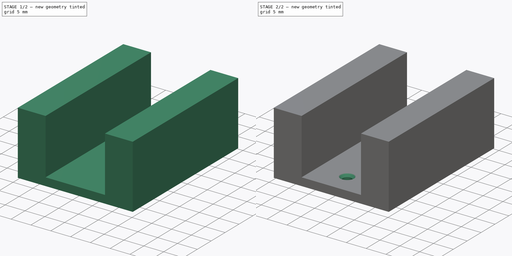
[diagram: build sequence overview — one tinted view per stage of 2, left to right]
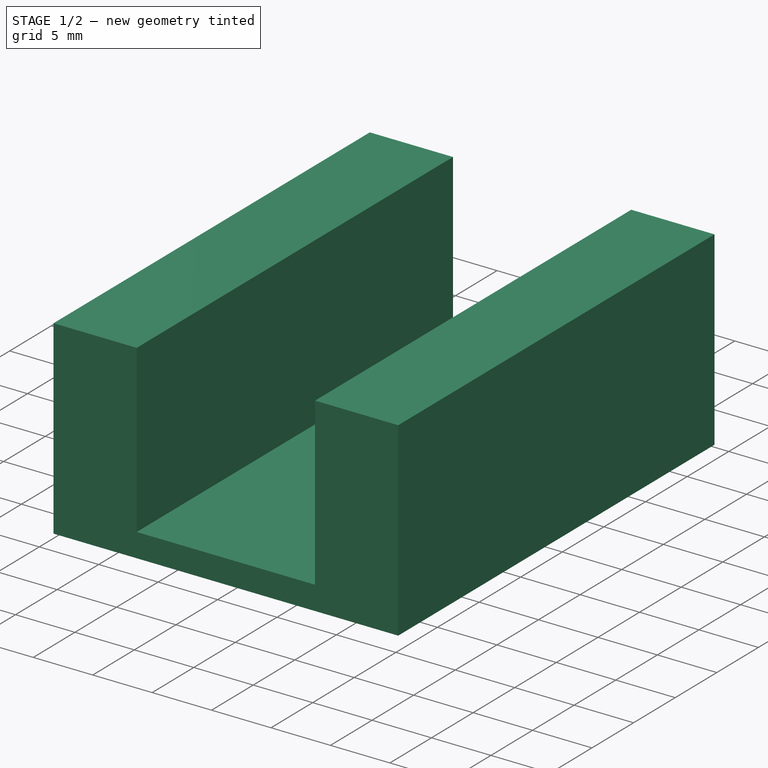
[diagram: stage 1 of 2 — iso view after this stage's code; geometry added in this stage tinted green]
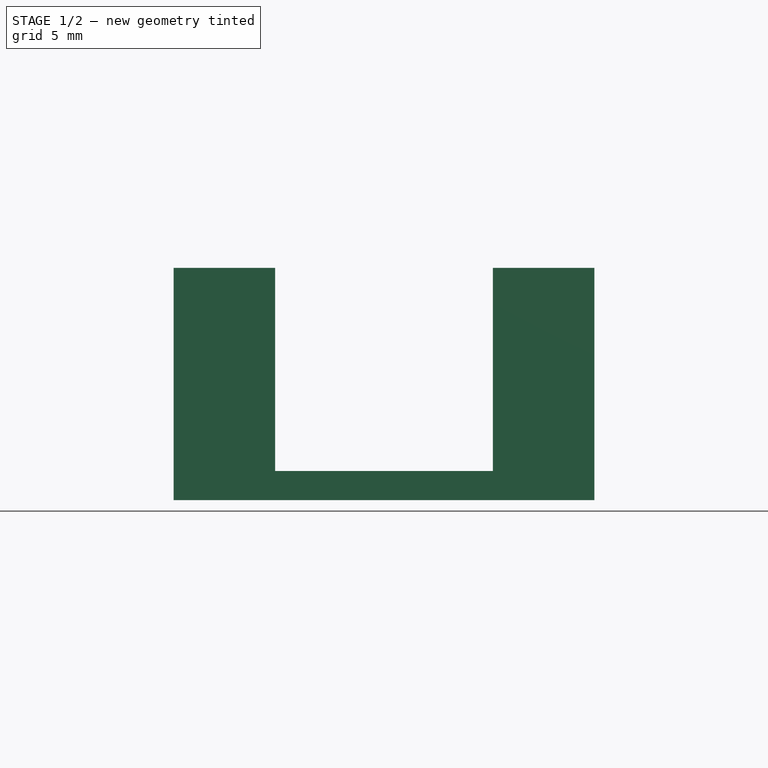
[diagram: stage 1 of 2 — front view after this stage's code; geometry added in this stage tinted green]
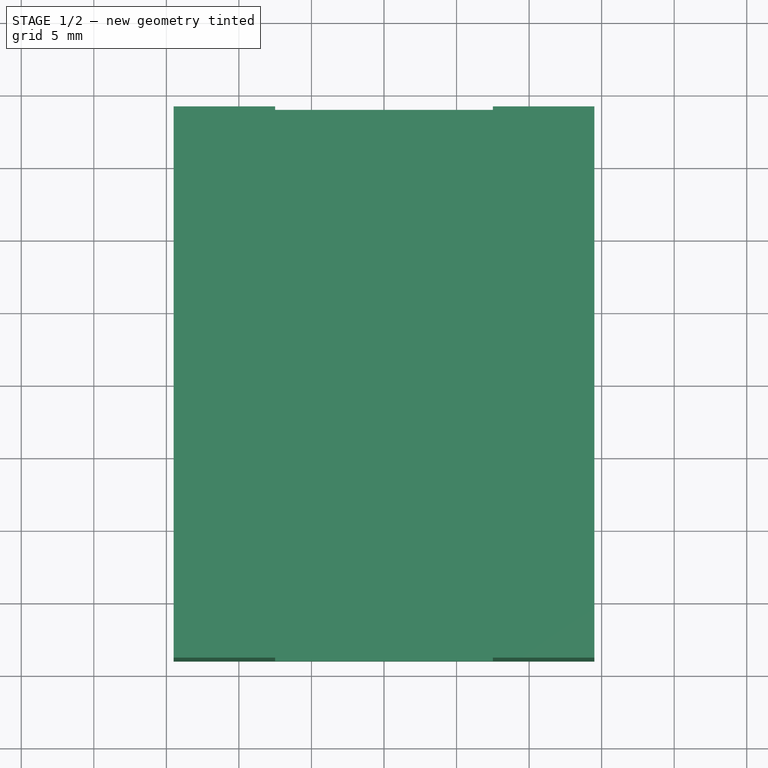
[diagram: stage 1 of 2 — top view after this stage's code; geometry added in this stage tinted green]
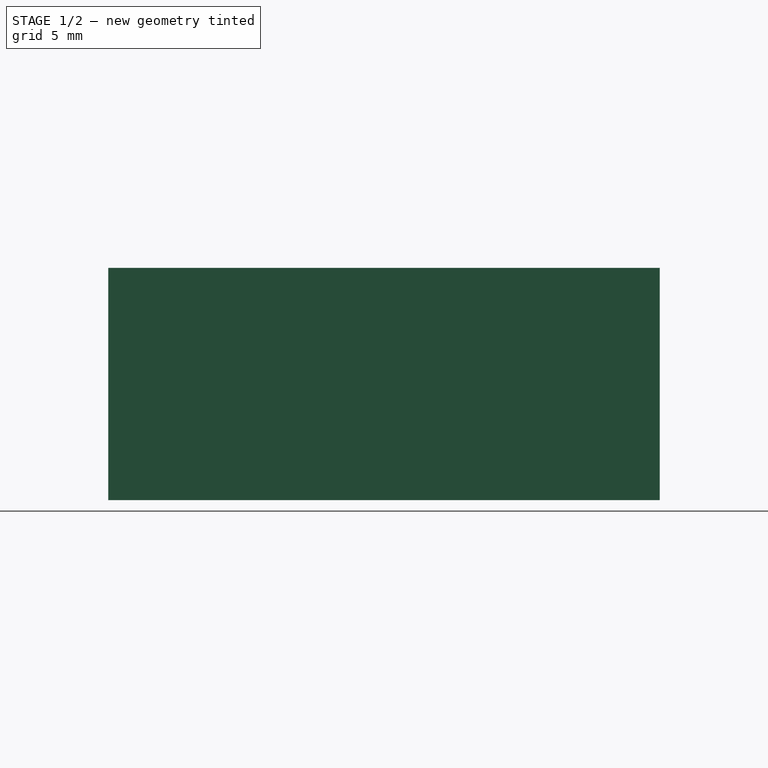
[diagram: stage 1 of 2 — right view after this stage's code; geometry added in this stage tinted green]
FCSTD DOCUMENT  (FreeCAD 0.21R33668 +26 (Git))
Label: TapWaterThermostatGrip
License: All rights reserved
LicenseURL: https://en.wikipedia.org/wiki/All_rights_reserved
objects: Sketcher::SketchObject×3, PartDesign::Pad×2, PartDesign::Hole×1, PartDesign::Body×1
note: 10 computed .brp shape members not serialized (recipe doc carries the construction recipe); baked Part::Feature solids carry a one-line shape summary decoded from their .brp

FEATURE [Sketcher::SketchObject] Sketch
  FullyConstrained = true
  MapMode = 5
  Support = -> [XY_Plane]
  expr: Constraints[22] = .Constraints.height / 2
  sketch-geometry (8):
    g0: LineSegment StartX=7.5 StartY=19 StartZ=0 EndX=14.5 EndY=19 EndZ=0
    g1: LineSegment StartX=14.5 StartY=19 StartZ=0 EndX=14.5 EndY=-19 EndZ=0
    g2: LineSegment StartX=14.5 StartY=-19 StartZ=0 EndX=7.5 EndY=-19 EndZ=0
    g3: LineSegment StartX=7.5 StartY=-19 StartZ=0 EndX=7.5 EndY=19 EndZ=0
    g4: LineSegment StartX=-14.5 StartY=19 StartZ=0 EndX=-7.5 EndY=19 EndZ=0
    g5: LineSegment StartX=-7.5 StartY=19 StartZ=0 EndX=-7.5 EndY=-19 EndZ=0
    g6: LineSegment StartX=-7.5 StartY=-19 StartZ=0 EndX=-14.5 EndY=-19 EndZ=0
    g7: LineSegment StartX=-14.5 StartY=-19 StartZ=0 EndX=-14.5 EndY=19 EndZ=0
  constraints (23):
    c: Coincident(g0,g1)
    c: Coincident(g1,g2)
    c: Coincident(g2,g3)
    c: Coincident(g3,g0)
    c: Horizontal(g0)
    c: Horizontal(g2)
    c: Vertical(g1)
    c: Vertical(g3)
    c: DistanceY(g1,g1) = 38  'height'
    c: Coincident(g4,g5)
    c: Coincident(g5,g6)
    c: Coincident(g6,g7)
    c: Coincident(g7,g4)
    c: Horizontal(g4)
    c: Horizontal(g6)
    c: Vertical(g5)
    c: Vertical(g7)
    c: Equal(g7,g1)
    c: Symmetric(g5,g2,g-2)
    c: DistanceX(g2,g2) = 7  'thickness'
    c: Equal(g6,g2)
    c: DistanceX(g4,g0) = 15  'inner_width'
    c: DistanceY(g-1,g4) = 19
FEATURE [Sketcher::SketchObject] Sketch001
  FullyConstrained = true
  MapMode = 5
  Support = -> [XY_Plane]
  expr: .Constraints.width = Sketch.Constraints.inner_width + 2 * Sketch.Constraints.thickness
  expr: Constraints[10] = Sketch.Constraints.height / 2
  expr: Constraints[11] = .Constraints.width / 2
  expr: Constraints[8] = Sketch.Constraints.height
  sketch-geometry (4):
    g0: LineSegment StartX=-14.5 StartY=19 StartZ=0 EndX=14.5 EndY=19 EndZ=0
    g1: LineSegment StartX=14.5 StartY=19 StartZ=0 EndX=14.5 EndY=-19 EndZ=0
    g2: LineSegment StartX=14.5 StartY=-19 StartZ=0 EndX=-14.5 EndY=-19 EndZ=0
    g3: LineSegment StartX=-14.5 StartY=-19 StartZ=0 EndX=-14.5 EndY=19 EndZ=0
  constraints (12):
    c: Coincident(g0,g1)
    c: Coincident(g1,g2)
    c: Coincident(g2,g3)
    c: Coincident(g3,g0)
    c: Horizontal(g0)
    c: Horizontal(g2)
    c: Vertical(g1)
    c: Vertical(g3)
    c: DistanceY(g1,g1) = 38
    c: DistanceX(g0,g0) = 29  'width'
    c: DistanceY(g-1,g0) = 19
    c: DistanceX(g0,g-1) = 14.5
FEATURE [PartDesign::Pad] Pad
  Direction = (0,0,1)
  Length = 2
  Length2 = 10
  Profile = -> Sketch001
  ReferenceAxis = -> Sketch001 [N_Axis]
  Reversed = true
  Type = 0
FEATURE [PartDesign::Pad] Pad001
  BaseFeature = -> Pad
  Direction = (0,0,1)
  Length = 14
  Length2 = 10
  Profile = -> Sketch
  ReferenceAxis = -> Sketch [N_Axis]
  Type = 0
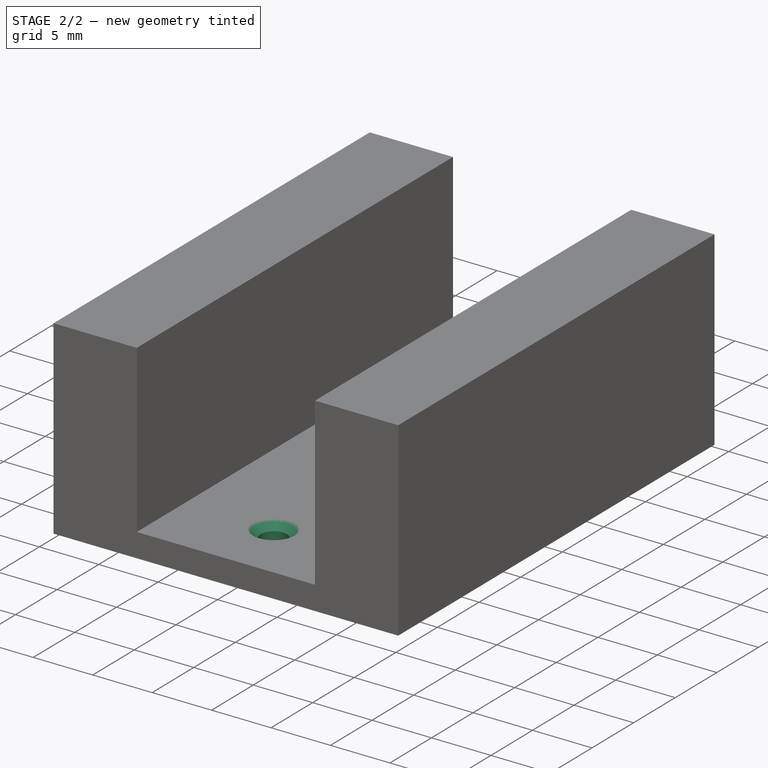
[diagram: stage 2 of 2 — iso view after this stage's code; geometry added in this stage tinted green]
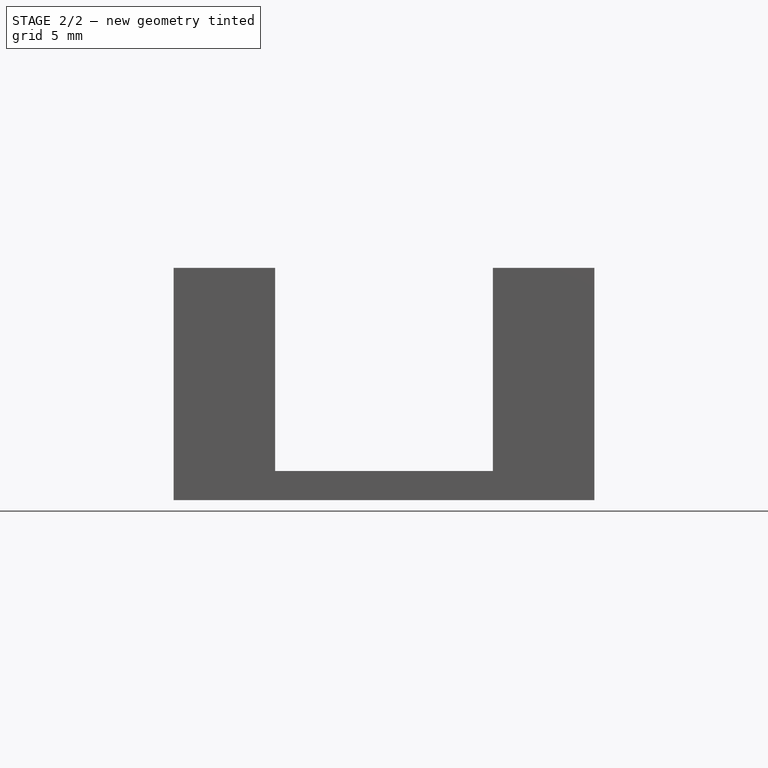
[diagram: stage 2 of 2 — front view after this stage's code; geometry added in this stage tinted green]
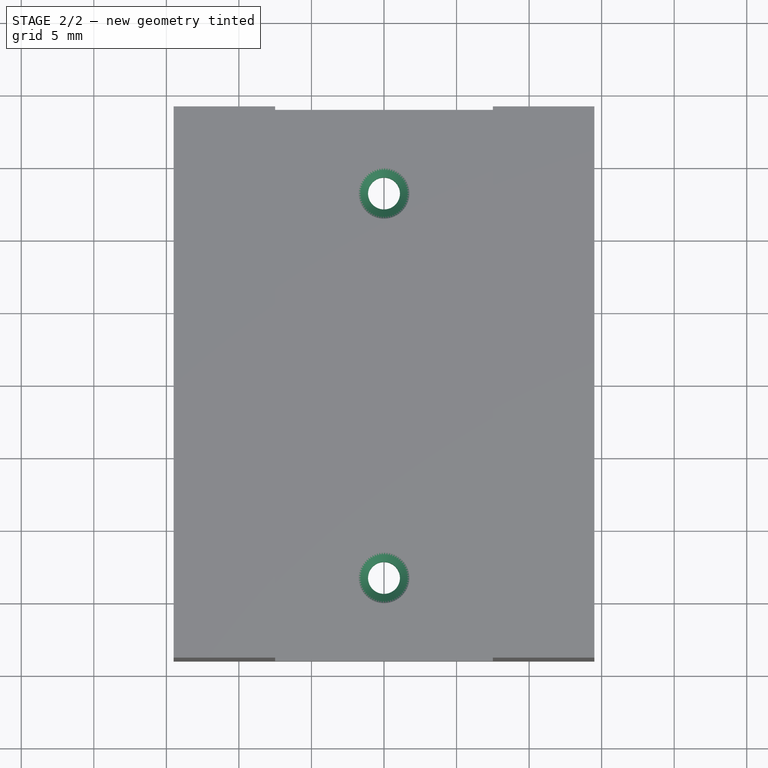
[diagram: stage 2 of 2 — top view after this stage's code; geometry added in this stage tinted green]
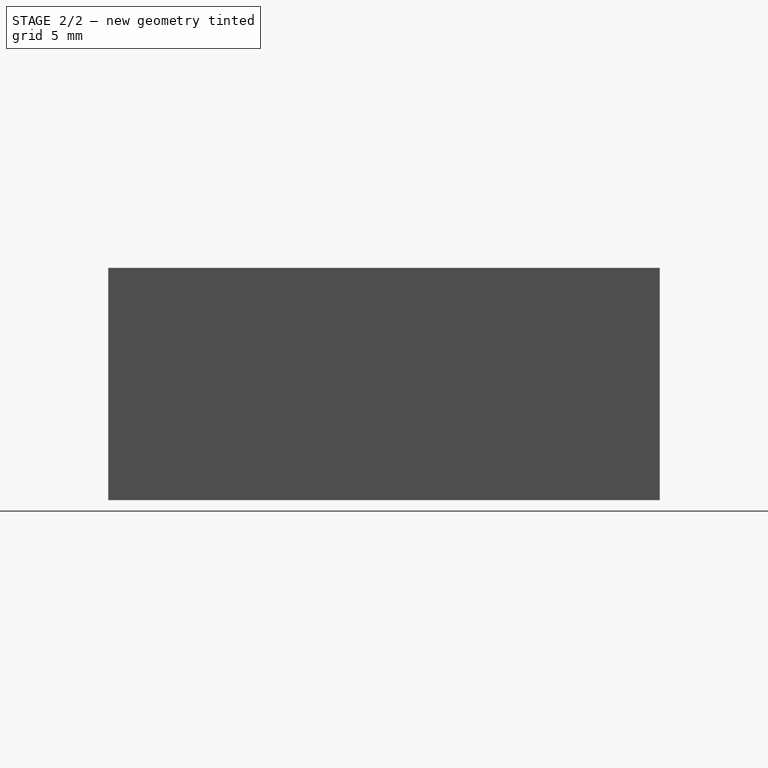
[diagram: stage 2 of 2 — right view after this stage's code; geometry added in this stage tinted green]
FEATURE [Sketcher::SketchObject] Sketch002
  FullyConstrained = true
  MapMode = 5
  Support = -> [XY_Plane]
  sketch-geometry (2):
    g0: Circle CenterX=0 CenterY=13.25 CenterZ=0 NormalX=0 NormalY=0 NormalZ=1 AngleXU=0 Radius=1.1
    g1: Circle CenterX=0 CenterY=-13.25 CenterZ=0 NormalX=0 NormalY=0 NormalZ=1 AngleXU=0 Radius=1.1
  constraints (5):
    c: PointOnObject(g0,g-2)
    c: Equal(g1,g0)
    c: Symmetric(g0,g1,g-1)
    c: DistanceY(g1,g0) = 26.5
    c: Diameter(g0) = 2.2
FEATURE [PartDesign::Hole] Hole
  BaseFeature = -> Pad001
  CustomThreadClearance = 0
  Depth = 25
  DepthType = 0
  Diameter = 2.2
  DrillForDepth = false
  DrillPoint = 0
  DrillPointAngle = 90
  HoleCutCountersinkAngle = 90
  HoleCutCustomValues = false
  HoleCutDepth = 0
  HoleCutDiameter = 3.5
  HoleCutType = 2
  ModelThread = false
  Profile = -> Sketch002
  Tapered = false
  TaperedAngle = 90
  ThreadClass = 0
  ThreadDepth = 25
  ThreadDepthType = 0
  ThreadDirection = 0
  ThreadFit = 1
  ThreadSize = 0
  ThreadType = 0
  Threaded = false
  UseCustomThreadClearance = false
FEATURE [PartDesign::Body] Body
  Group = -> [Sketch,Sketch001,Pad,Pad001,Sketch002,Hole]
  Origin = -> Origin
  Tip = -> Hole
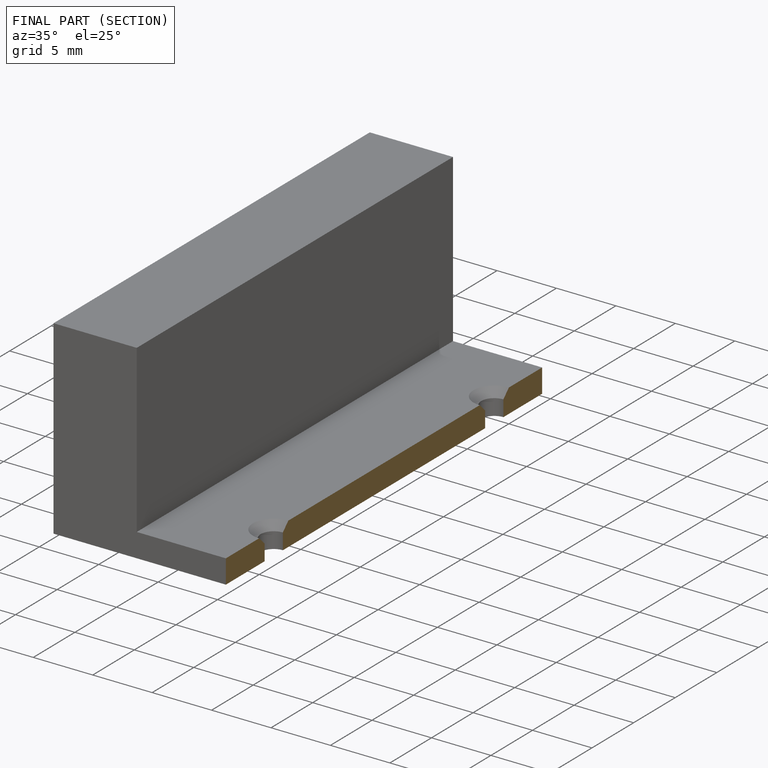
[diagram: finished part — half-section view (interior)]
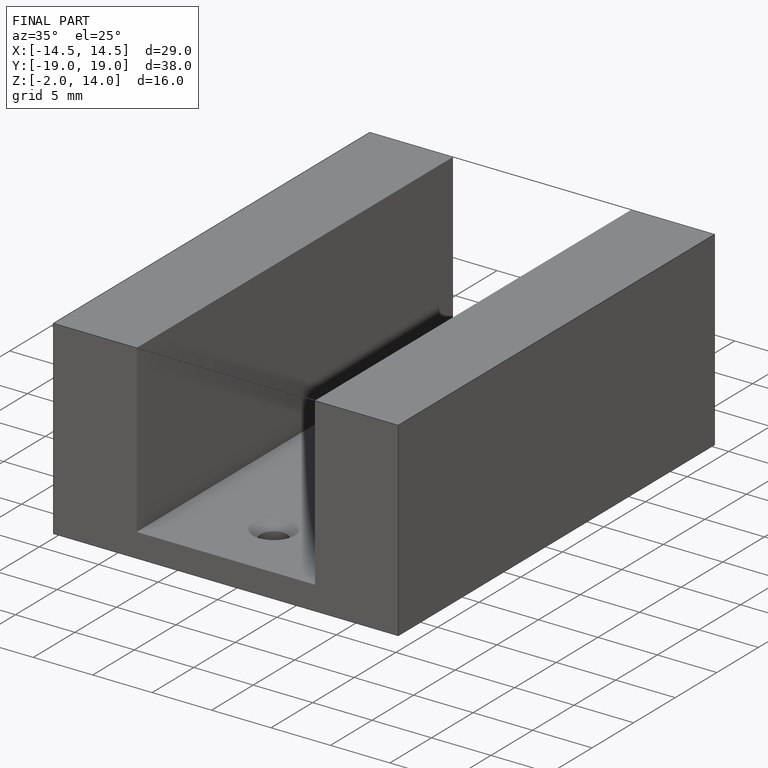
[diagram: finished part — iso view with bounding-box wireframe]
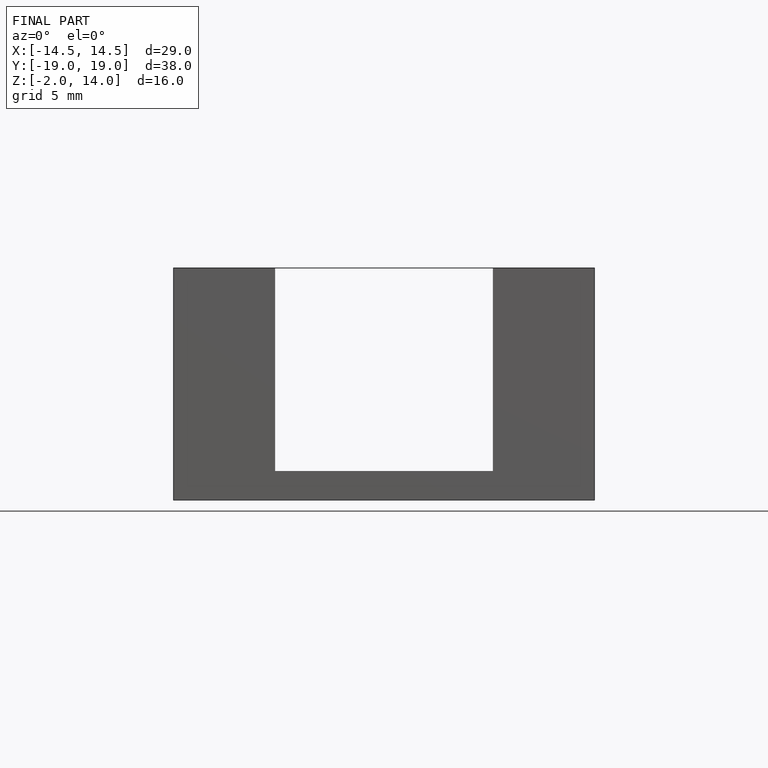
[diagram: finished part — front view with bounding-box wireframe]
